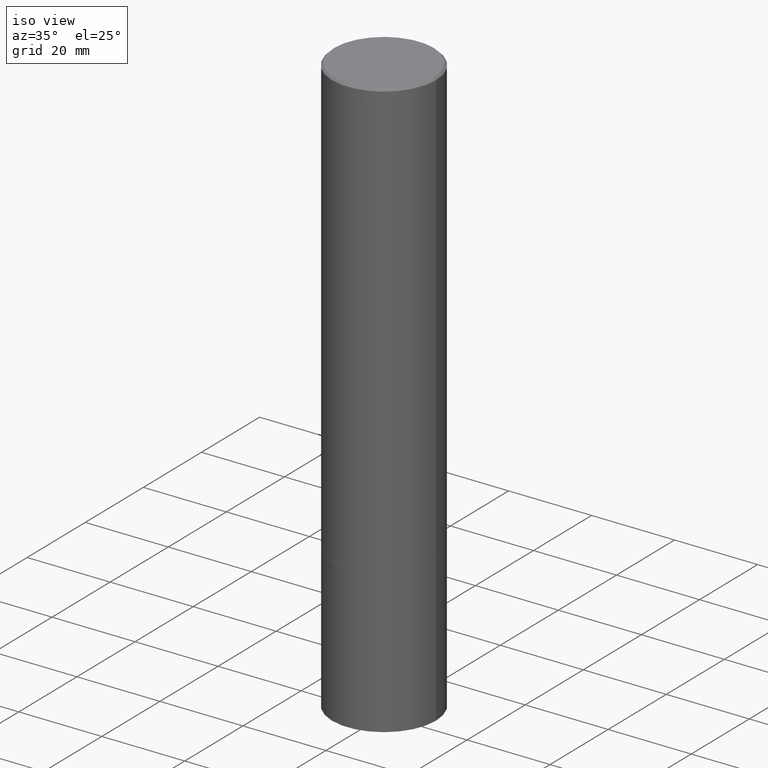
[diagram: clean part render]
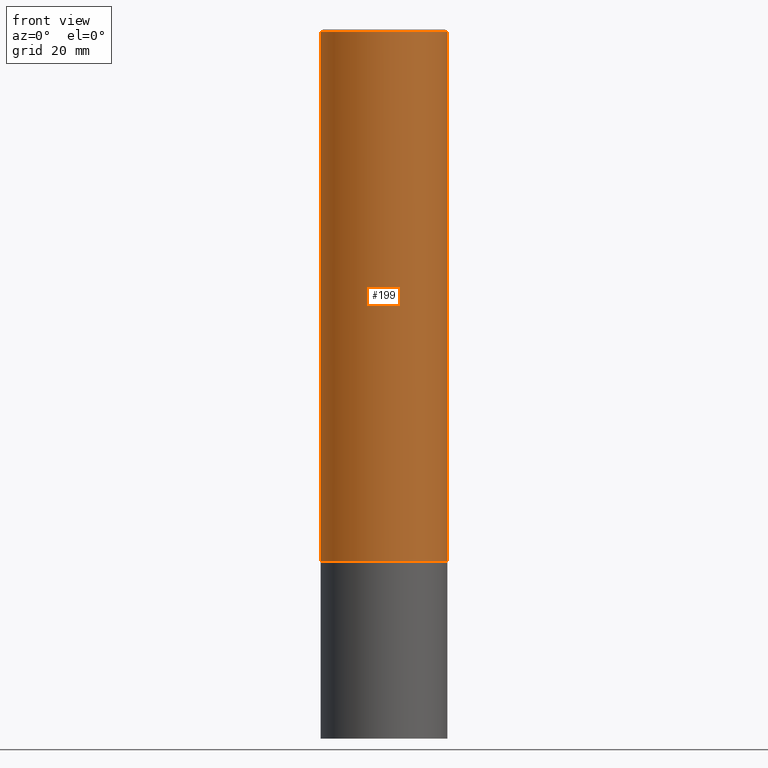
[diagram: tour spotlight — one face highlighted and labeled with its STEP entity id]
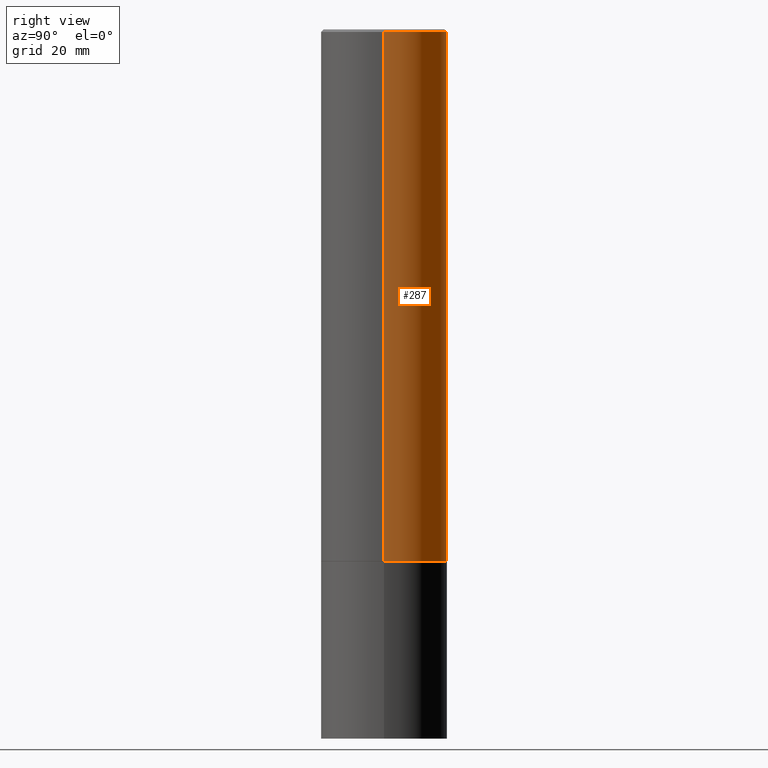
[diagram: tour spotlight — one face highlighted and labeled with its STEP entity id]
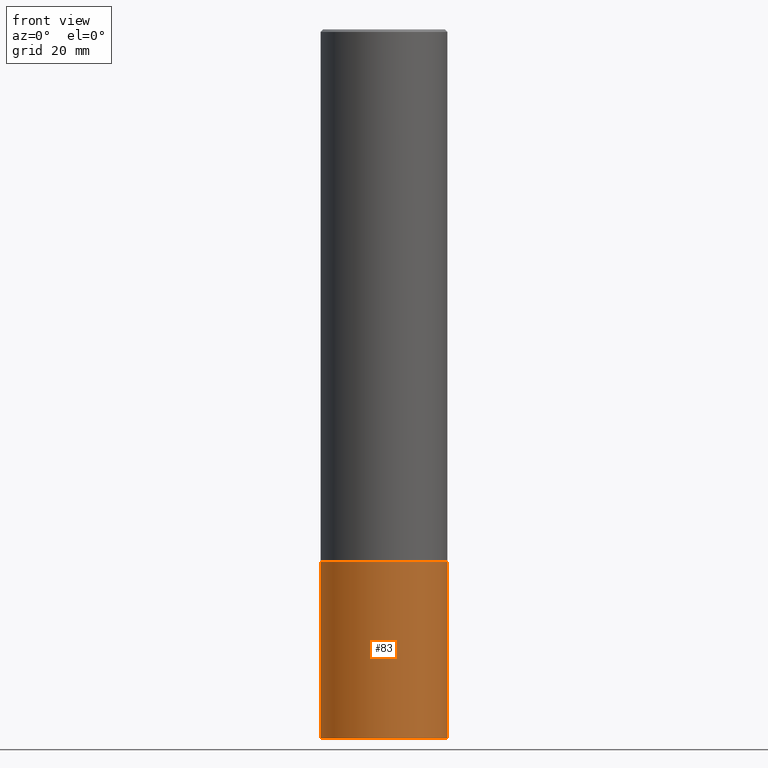
[diagram: tour spotlight — one face highlighted and labeled with its STEP entity id]
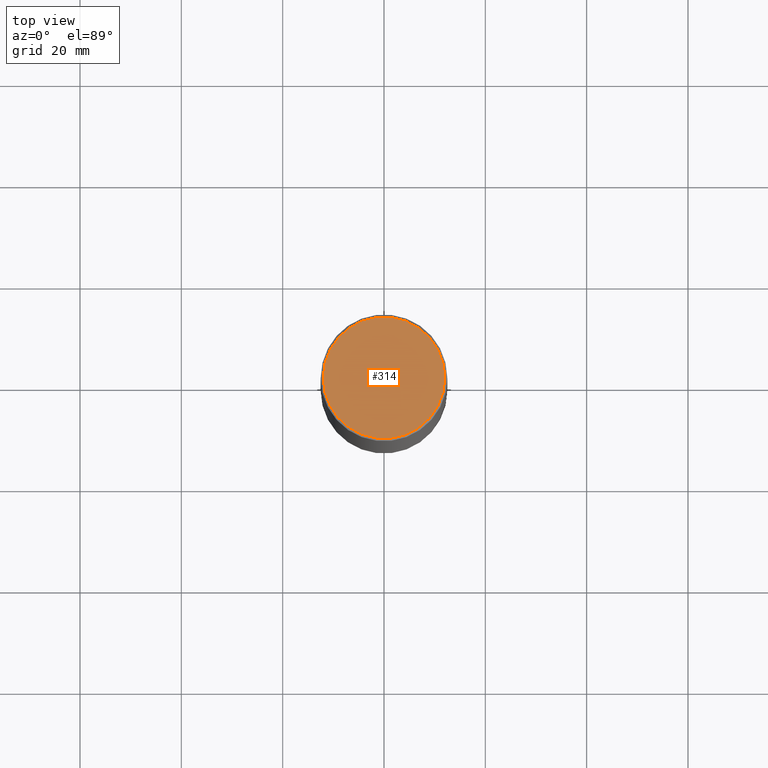
[diagram: tour spotlight — one face highlighted and labeled with its STEP entity id]
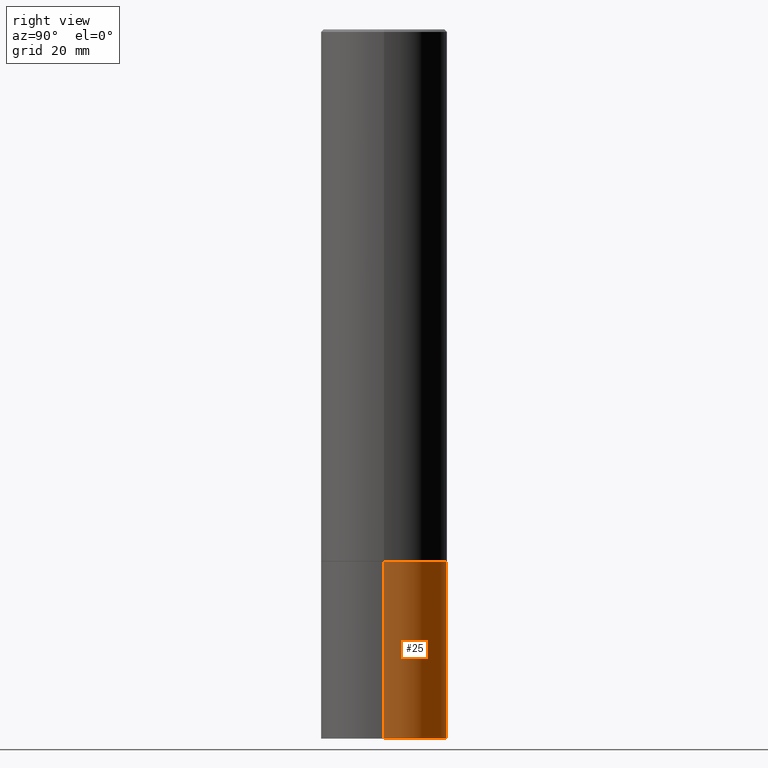
[diagram: tour spotlight — one face highlighted and labeled with its STEP entity id]
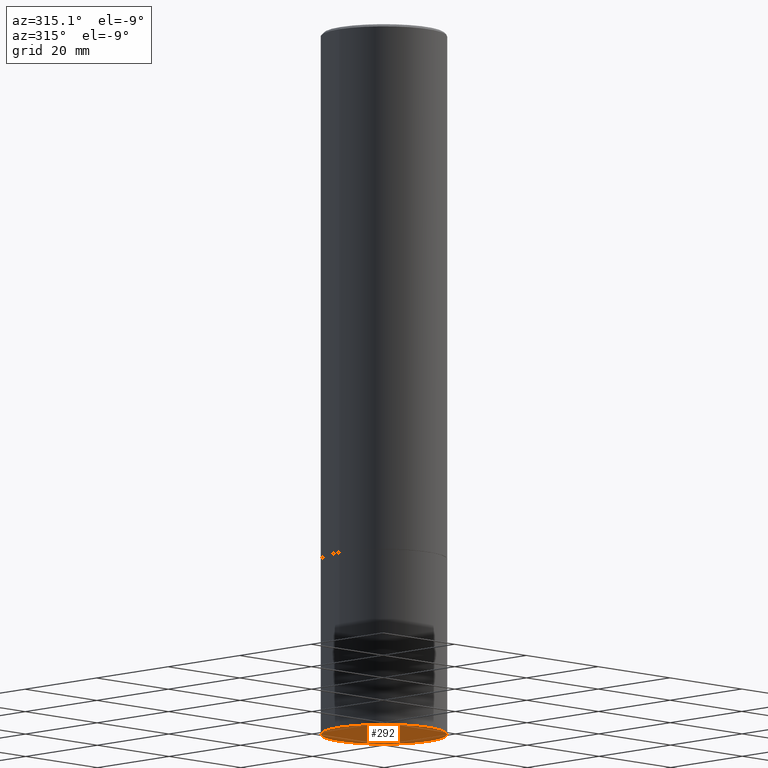
[diagram: tour spotlight — one face highlighted and labeled with its STEP entity id]
A machine part: a face-by-face anatomy tour. The part has 12 B-rep faces; the first image is the clean iso view, then the 6 largest visible faces are spotlighted one at a time (largest first), each with its STEP entity span.

Face 1 — front view, entity #199. In plain terms, the highlighted cylindrical surface (partial cylindrical patch) has radius 12.5006 mm, axis along (-0, 0, 1).
Definition (entity closure, byte-faithful):
#14 = DIRECTION ( 'NONE',  ( -2.445468806185136597E-29, 3.491481338843145583E-15, 1.000000000000000000 ) ) ;
#17 = ORIENTED_EDGE ( 'NONE', *, *, #92, .F. ) ;
#21 = LINE ( 'NONE', #277, #245 ) ;
#39 = VERTEX_POINT ( 'NONE', #222 ) ;
#47 = LINE ( 'NONE', #361, #58 ) ;
#58 = VECTOR ( 'NONE', #93, 39.37007874015748143 ) ;
#60 = VERTEX_POINT ( 'NONE', #171 ) ;
#74 = EDGE_CURVE ( 'NONE', #286, #60, #77, .T. ) ;
#77 = CIRCLE ( 'NONE', #200, 0.4921499999999996988 ) ;
#79 = DIRECTION ( 'NONE',  ( 1.000000000000000000, -6.982962677686265922E-15, 4.876176775795935793E-29 ) ) ;
#89 = ORIENTED_EDGE ( 'NONE', *, *, #281, .T. ) ;
#92 = EDGE_CURVE ( 'NONE', #39, #286, #21, .T. ) ;
#93 = DIRECTION ( 'NONE',  ( -2.445468806185136877E-29, 3.491481338843145188E-15, 1.000000000000000000 ) ) ;
#122 = FACE_OUTER_BOUND ( 'NONE', #185, .T. ) ;
#128 = DIRECTION ( 'NONE',  ( -2.445468806185136597E-29, 3.491481338843145583E-15, 1.000000000000000000 ) ) ;
#149 = DIRECTION ( 'NONE',  ( 1.000000000000000000, -6.982962677686265922E-15, 0.000000000000000000 ) ) ;
#152 = CARTESIAN_POINT ( 'NONE',  ( 0.000000000000000000, 0.000000000000000000, 0.000000000000000000 ) ) ;
#160 = VERTEX_POINT ( 'NONE', #303 ) ;
#171 = CARTESIAN_POINT ( 'NONE',  ( 0.4921499999999996988, -3.446223716380120377E-15, -0.02000000000000011838 ) ) ;
#175 = CIRCLE ( 'NONE', #295, 0.4921499999999999764 ) ;
#184 = CARTESIAN_POINT ( 'NONE',  ( 4.890937612370302936E-31, -6.982962677686332285E-17, -0.02000000000000011838 ) ) ;
#185 = EDGE_LOOP ( 'NONE', ( #17, #366, #89, #280 ) ) ;
#199 = ADVANCED_FACE ( 'NONE', ( #122 ), #339, .T. ) ;
#200 = AXIS2_PLACEMENT_3D ( 'NONE', #184, #14, #326 ) ;
#212 = CARTESIAN_POINT ( 'NONE',  ( -0.4921499999999996988, 3.366835455046430506E-15, -0.02000000000000011838 ) ) ;
#222 = CARTESIAN_POINT ( 'NONE',  ( -0.4921499999999999764, -3.752775777930573480E-15, -4.132800000000000473 ) ) ;
#245 = VECTOR ( 'NONE', #362, 39.37007874015748143 ) ;
#271 = EDGE_CURVE ( 'NONE', #39, #160, #175, .T. ) ;
#273 = DIRECTION ( 'NONE',  ( -2.445468806185136597E-29, 3.491481338843145583E-15, 1.000000000000000000 ) ) ;
#277 = CARTESIAN_POINT ( 'NONE',  ( -0.4921499999999998098, 3.496936074043331714E-15, -2.420853904668950949E-29 ) ) ;
#280 = ORIENTED_EDGE ( 'NONE', *, *, #74, .F. ) ;
#281 = EDGE_CURVE ( 'NONE', #160, #60, #47, .T. ) ;
#286 = VERTEX_POINT ( 'NONE', #212 ) ;
#295 = AXIS2_PLACEMENT_3D ( 'NONE', #304, #128, #149 ) ;
#303 = CARTESIAN_POINT ( 'NONE',  ( 0.4921499999999999764, -1.786625915899424839E-14, -4.132800000000000473 ) ) ;
#304 = CARTESIAN_POINT ( 'NONE',  ( 1.010663348220193347E-28, -1.442959407717095419E-14, -4.132800000000000473 ) ) ;
#326 = DIRECTION ( 'NONE',  ( 1.000000000000000000, -6.982962677686265922E-15, 0.000000000000000000 ) ) ;
#339 = CYLINDRICAL_SURFACE ( 'NONE', #355, 0.4921499999999998098 ) ;
#355 = AXIS2_PLACEMENT_3D ( 'NONE', #152, #273, #79 ) ;
#361 = CARTESIAN_POINT ( 'NONE',  ( 0.4921499999999998098, -3.436665081823294593E-15, 2.399810400207968762E-29 ) ) ;
#362 = DIRECTION ( 'NONE',  ( -2.445468806185136877E-29, 3.491481338843145188E-15, 1.000000000000000000 ) ) ;
#366 = ORIENTED_EDGE ( 'NONE', *, *, #271, .T. ) ;

Face 2 — right view, entity #287. In plain terms, the highlighted cylindrical surface (partial cylindrical patch) has radius 12.5006 mm, axis along (-0, 0, 1).
Definition (entity closure, byte-faithful):
#8 = AXIS2_PLACEMENT_3D ( 'NONE', #121, #335, #299 ) ;
#21 = LINE ( 'NONE', #277, #245 ) ;
#28 = ORIENTED_EDGE ( 'NONE', *, *, #92, .T. ) ;
#32 = CIRCLE ( 'NONE', #8, 0.4921499999999999764 ) ;
#34 = CIRCLE ( 'NONE', #289, 0.4921499999999996988 ) ;
#39 = VERTEX_POINT ( 'NONE', #222 ) ;
#45 = FACE_OUTER_BOUND ( 'NONE', #172, .T. ) ;
#47 = LINE ( 'NONE', #361, #58 ) ;
#53 = ORIENTED_EDGE ( 'NONE', *, *, #281, .F. ) ;
#58 = VECTOR ( 'NONE', #93, 39.37007874015748143 ) ;
#60 = VERTEX_POINT ( 'NONE', #171 ) ;
#78 = ORIENTED_EDGE ( 'NONE', *, *, #247, .T. ) ;
#92 = EDGE_CURVE ( 'NONE', #39, #286, #21, .T. ) ;
#93 = DIRECTION ( 'NONE',  ( -2.445468806185136877E-29, 3.491481338843145188E-15, 1.000000000000000000 ) ) ;
#96 = CYLINDRICAL_SURFACE ( 'NONE', #223, 0.4921499999999998098 ) ;
#104 = CARTESIAN_POINT ( 'NONE',  ( 4.890937612370302936E-31, -6.982962677686332285E-17, -0.02000000000000011838 ) ) ;
#121 = CARTESIAN_POINT ( 'NONE',  ( 1.010663348220193347E-28, -1.442959407717095419E-14, -4.132800000000000473 ) ) ;
#144 = ORIENTED_EDGE ( 'NONE', *, *, #342, .F. ) ;
#155 = DIRECTION ( 'NONE',  ( 1.000000000000000000, -6.982962677686265922E-15, 4.876176775795935793E-29 ) ) ;
#160 = VERTEX_POINT ( 'NONE', #303 ) ;
#171 = CARTESIAN_POINT ( 'NONE',  ( 0.4921499999999996988, -3.446223716380120377E-15, -0.02000000000000011838 ) ) ;
#172 = EDGE_LOOP ( 'NONE', ( #78, #28, #144, #53 ) ) ;
#192 = DIRECTION ( 'NONE',  ( -2.445468806185136597E-29, 3.491481338843145583E-15, 1.000000000000000000 ) ) ;
#212 = CARTESIAN_POINT ( 'NONE',  ( -0.4921499999999996988, 3.366835455046430506E-15, -0.02000000000000011838 ) ) ;
#213 = DIRECTION ( 'NONE',  ( -2.445468806185136597E-29, 3.491481338843145583E-15, 1.000000000000000000 ) ) ;
#222 = CARTESIAN_POINT ( 'NONE',  ( -0.4921499999999999764, -3.752775777930573480E-15, -4.132800000000000473 ) ) ;
#223 = AXIS2_PLACEMENT_3D ( 'NONE', #252, #213, #155 ) ;
#245 = VECTOR ( 'NONE', #362, 39.37007874015748143 ) ;
#247 = EDGE_CURVE ( 'NONE', #160, #39, #32, .T. ) ;
#252 = CARTESIAN_POINT ( 'NONE',  ( 0.000000000000000000, 0.000000000000000000, 0.000000000000000000 ) ) ;
#277 = CARTESIAN_POINT ( 'NONE',  ( -0.4921499999999998098, 3.496936074043331714E-15, -2.420853904668950949E-29 ) ) ;
#281 = EDGE_CURVE ( 'NONE', #160, #60, #47, .T. ) ;
#286 = VERTEX_POINT ( 'NONE', #212 ) ;
#287 = ADVANCED_FACE ( 'NONE', ( #45 ), #96, .T. ) ;
#289 = AXIS2_PLACEMENT_3D ( 'NONE', #104, #192, #310 ) ;
#299 = DIRECTION ( 'NONE',  ( 1.000000000000000000, -6.982962677686265922E-15, 0.000000000000000000 ) ) ;
#303 = CARTESIAN_POINT ( 'NONE',  ( 0.4921499999999999764, -1.786625915899424839E-14, -4.132800000000000473 ) ) ;
#310 = DIRECTION ( 'NONE',  ( 1.000000000000000000, -6.982962677686265922E-15, 0.000000000000000000 ) ) ;
#335 = DIRECTION ( 'NONE',  ( -2.445468806185136597E-29, 3.491481338843145583E-15, 1.000000000000000000 ) ) ;
#342 = EDGE_CURVE ( 'NONE', #60, #286, #34, .T. ) ;
#361 = CARTESIAN_POINT ( 'NONE',  ( 0.4921499999999998098, -3.436665081823294593E-15, 2.399810400207968762E-29 ) ) ;
#362 = DIRECTION ( 'NONE',  ( -2.445468806185136877E-29, 3.491481338843145188E-15, 1.000000000000000000 ) ) ;

Face 3 — front view, entity #83. In plain terms, the highlighted cylindrical surface (partial cylindrical patch) has radius 12.5006 mm, axis along (-0, 0, 1).
Definition (entity closure, byte-faithful):
#6 = CARTESIAN_POINT ( 'NONE',  ( 1.010907895100811684E-28, -1.443308555850979562E-14, -4.133799999999999919 ) ) ;
#18 = EDGE_CURVE ( 'NONE', #265, #61, #288, .T. ) ;
#29 = CARTESIAN_POINT ( 'NONE',  ( 0.4921499999999999764, -1.786975064033308982E-14, -4.133799999999999919 ) ) ;
#30 = DIRECTION ( 'NONE',  ( -2.445468806185136877E-29, 3.491481338843145188E-15, 1.000000000000000000 ) ) ;
#36 = ORIENTED_EDGE ( 'NONE', *, *, #353, .F. ) ;
#46 = ORIENTED_EDGE ( 'NONE', *, *, #18, .F. ) ;
#55 = DIRECTION ( 'NONE',  ( -2.445468806185136597E-29, 3.491481338843145583E-15, 1.000000000000000000 ) ) ;
#61 = VERTEX_POINT ( 'NONE', #296 ) ;
#62 = CARTESIAN_POINT ( 'NONE',  ( 0.000000000000000000, 0.000000000000000000, 0.000000000000000000 ) ) ;
#64 = EDGE_LOOP ( 'NONE', ( #46, #358, #138, #36 ) ) ;
#69 = AXIS2_PLACEMENT_3D ( 'NONE', #6, #71, #359 ) ;
#71 = DIRECTION ( 'NONE',  ( -2.445468806185136597E-29, 3.491481338843145583E-15, 1.000000000000000000 ) ) ;
#83 = ADVANCED_FACE ( 'NONE', ( #115 ), #118, .T. ) ;
#87 = VECTOR ( 'NONE', #30, 39.37007874015748143 ) ;
#94 = CARTESIAN_POINT ( 'NONE',  ( -0.4921499999999999764, -1.334178012692939009E-14, -5.511800000000000033 ) ) ;
#115 = FACE_OUTER_BOUND ( 'NONE', #64, .T. ) ;
#118 = CYLINDRICAL_SURFACE ( 'NONE', #262, 0.4921499999999999764 ) ;
#130 = VERTEX_POINT ( 'NONE', #29 ) ;
#136 = DIRECTION ( 'NONE',  ( 1.000000000000000000, -6.982962677686265922E-15, 0.000000000000000000 ) ) ;
#138 = ORIENTED_EDGE ( 'NONE', *, *, #308, .T. ) ;
#146 = DIRECTION ( 'NONE',  ( -2.445468806185136597E-29, 3.491481338843145583E-15, 1.000000000000000000 ) ) ;
#153 = CIRCLE ( 'NONE', #69, 0.4921499999999999764 ) ;
#189 = VERTEX_POINT ( 'NONE', #244 ) ;
#209 = CARTESIAN_POINT ( 'NONE',  ( 0.4921499999999999764, -3.436665081823295777E-15, 2.399810400207969603E-29 ) ) ;
#229 = VECTOR ( 'NONE', #243, 39.37007874015748143 ) ;
#243 = DIRECTION ( 'NONE',  ( -2.445468806185136877E-29, 3.491481338843145188E-15, 1.000000000000000000 ) ) ;
#244 = CARTESIAN_POINT ( 'NONE',  ( 0.4921499999999999764, -2.268101192525894613E-14, -5.511800000000000033 ) ) ;
#262 = AXIS2_PLACEMENT_3D ( 'NONE', #62, #146, #263 ) ;
#263 = DIRECTION ( 'NONE',  ( 1.000000000000000000, -6.982962677686265922E-15, 4.876176775795935793E-29 ) ) ;
#265 = VERTEX_POINT ( 'NONE', #94 ) ;
#274 = CIRCLE ( 'NONE', #322, 0.4921499999999999764 ) ;
#288 = LINE ( 'NONE', #349, #87 ) ;
#296 = CARTESIAN_POINT ( 'NONE',  ( -0.4921499999999999764, -1.334178012692939009E-14, -4.133799999999999919 ) ) ;
#308 = EDGE_CURVE ( 'NONE', #189, #130, #356, .T. ) ;
#320 = CARTESIAN_POINT ( 'NONE',  ( 1.347893496593123646E-28, -1.924434684343564878E-14, -5.511800000000000033 ) ) ;
#322 = AXIS2_PLACEMENT_3D ( 'NONE', #320, #55, #136 ) ;
#323 = EDGE_CURVE ( 'NONE', #265, #189, #274, .T. ) ;
#349 = CARTESIAN_POINT ( 'NONE',  ( -0.4921499999999999764, 3.496936074043332897E-15, -2.420853904668951509E-29 ) ) ;
#353 = EDGE_CURVE ( 'NONE', #61, #130, #153, .T. ) ;
#356 = LINE ( 'NONE', #209, #229 ) ;
#358 = ORIENTED_EDGE ( 'NONE', *, *, #323, .T. ) ;
#359 = DIRECTION ( 'NONE',  ( 1.000000000000000000, -6.982962677686261977E-15, 0.000000000000000000 ) ) ;

Face 4 — top view, entity #314. In plain terms, the highlighted planar face has unit normal (0, -0, -1).
Definition (entity closure, byte-faithful):
#15 = AXIS2_PLACEMENT_3D ( 'NONE', #325, #224, #270 ) ;
#23 = CIRCLE ( 'NONE', #291, 0.4721499999999996255 ) ;
#41 = CARTESIAN_POINT ( 'NONE',  ( -0.4721499999999996255, 3.331920641657999252E-15, 8.537024980177643606E-18 ) ) ;
#63 = AXIS2_PLACEMENT_3D ( 'NONE', #197, #344, #279 ) ;
#101 = FACE_OUTER_BOUND ( 'NONE', #293, .T. ) ;
#103 = CARTESIAN_POINT ( 'NONE',  ( 0.4721499999999996255, -3.342703923013973396E-15, 8.537024980224040028E-18 ) ) ;
#108 = EDGE_CURVE ( 'NONE', #214, #186, #23, .T. ) ;
#112 = CARTESIAN_POINT ( 'NONE',  ( -2.087702828670439639E-46, 2.980686340760894400E-32, 8.537024980200822558E-18 ) ) ;
#135 = EDGE_CURVE ( 'NONE', #186, #214, #169, .T. ) ;
#169 = CIRCLE ( 'NONE', #15, 0.4721499999999996255 ) ;
#186 = VERTEX_POINT ( 'NONE', #103 ) ;
#196 = PLANE ( 'NONE',  #63 ) ;
#197 = CARTESIAN_POINT ( 'NONE',  ( 3.297005828269567997E-15, 0.4721499999999996255, -1.644234401644689488E-15 ) ) ;
#214 = VERTEX_POINT ( 'NONE', #41 ) ;
#224 = DIRECTION ( 'NONE',  ( -2.445468806185136597E-29, 3.491481338843145583E-15, 1.000000000000000000 ) ) ;
#230 = ORIENTED_EDGE ( 'NONE', *, *, #108, .T. ) ;
#234 = ORIENTED_EDGE ( 'NONE', *, *, #135, .T. ) ;
#270 = DIRECTION ( 'NONE',  ( 1.000000000000000000, -6.982962677686265922E-15, 4.876006802227162976E-29 ) ) ;
#275 = DIRECTION ( 'NONE',  ( -2.445468806185136597E-29, 3.491481338843145583E-15, 1.000000000000000000 ) ) ;
#279 = DIRECTION ( 'NONE',  ( -1.000000000000000000, 6.982962677686265922E-15, -4.876176775795935793E-29 ) ) ;
#285 = DIRECTION ( 'NONE',  ( 1.000000000000000000, -6.982962677686265922E-15, 4.876006802227162976E-29 ) ) ;
#291 = AXIS2_PLACEMENT_3D ( 'NONE', #112, #275, #285 ) ;
#293 = EDGE_LOOP ( 'NONE', ( #230, #234 ) ) ;
#314 = ADVANCED_FACE ( 'NONE', ( #101 ), #196, .F. ) ;
#325 = CARTESIAN_POINT ( 'NONE',  ( -2.087702828670439639E-46, 2.980686340760894400E-32, 8.537024980200822558E-18 ) ) ;
#344 = DIRECTION ( 'NONE',  ( 2.438088387897960049E-29, -3.491481338843145188E-15, -1.000000000000000000 ) ) ;

Face 5 — right view, entity #25. In plain terms, the highlighted cylindrical surface (partial cylindrical patch) has radius 12.5006 mm, axis along (-0, 0, 1).
Definition (entity closure, byte-faithful):
#7 = AXIS2_PLACEMENT_3D ( 'NONE', #140, #198, #321 ) ;
#18 = EDGE_CURVE ( 'NONE', #265, #61, #288, .T. ) ;
#24 = CIRCLE ( 'NONE', #217, 0.4921499999999999764 ) ;
#25 = ADVANCED_FACE ( 'NONE', ( #107 ), #59, .T. ) ;
#29 = CARTESIAN_POINT ( 'NONE',  ( 0.4921499999999999764, -1.786975064033308982E-14, -4.133799999999999919 ) ) ;
#30 = DIRECTION ( 'NONE',  ( -2.445468806185136877E-29, 3.491481338843145188E-15, 1.000000000000000000 ) ) ;
#59 = CYLINDRICAL_SURFACE ( 'NONE', #7, 0.4921499999999999764 ) ;
#61 = VERTEX_POINT ( 'NONE', #296 ) ;
#87 = VECTOR ( 'NONE', #30, 39.37007874015748143 ) ;
#94 = CARTESIAN_POINT ( 'NONE',  ( -0.4921499999999999764, -1.334178012692939009E-14, -5.511800000000000033 ) ) ;
#107 = FACE_OUTER_BOUND ( 'NONE', #330, .T. ) ;
#116 = EDGE_CURVE ( 'NONE', #130, #61, #312, .T. ) ;
#130 = VERTEX_POINT ( 'NONE', #29 ) ;
#140 = CARTESIAN_POINT ( 'NONE',  ( 0.000000000000000000, 0.000000000000000000, 0.000000000000000000 ) ) ;
#143 = AXIS2_PLACEMENT_3D ( 'NONE', #260, #297, #337 ) ;
#150 = CARTESIAN_POINT ( 'NONE',  ( 1.347893496593123646E-28, -1.924434684343564878E-14, -5.511800000000000033 ) ) ;
#189 = VERTEX_POINT ( 'NONE', #244 ) ;
#198 = DIRECTION ( 'NONE',  ( -2.445468806185136597E-29, 3.491481338843145583E-15, 1.000000000000000000 ) ) ;
#208 = ORIENTED_EDGE ( 'NONE', *, *, #308, .F. ) ;
#209 = CARTESIAN_POINT ( 'NONE',  ( 0.4921499999999999764, -3.436665081823295777E-15, 2.399810400207969603E-29 ) ) ;
#215 = DIRECTION ( 'NONE',  ( -2.445468806185136597E-29, 3.491481338843145583E-15, 1.000000000000000000 ) ) ;
#217 = AXIS2_PLACEMENT_3D ( 'NONE', #150, #215, #267 ) ;
#219 = EDGE_CURVE ( 'NONE', #189, #265, #24, .T. ) ;
#229 = VECTOR ( 'NONE', #243, 39.37007874015748143 ) ;
#241 = ORIENTED_EDGE ( 'NONE', *, *, #18, .T. ) ;
#243 = DIRECTION ( 'NONE',  ( -2.445468806185136877E-29, 3.491481338843145188E-15, 1.000000000000000000 ) ) ;
#244 = CARTESIAN_POINT ( 'NONE',  ( 0.4921499999999999764, -2.268101192525894613E-14, -5.511800000000000033 ) ) ;
#260 = CARTESIAN_POINT ( 'NONE',  ( 1.010907895100811684E-28, -1.443308555850979562E-14, -4.133799999999999919 ) ) ;
#265 = VERTEX_POINT ( 'NONE', #94 ) ;
#267 = DIRECTION ( 'NONE',  ( 1.000000000000000000, -6.982962677686265922E-15, 0.000000000000000000 ) ) ;
#288 = LINE ( 'NONE', #349, #87 ) ;
#296 = CARTESIAN_POINT ( 'NONE',  ( -0.4921499999999999764, -1.334178012692939009E-14, -4.133799999999999919 ) ) ;
#297 = DIRECTION ( 'NONE',  ( -2.445468806185136597E-29, 3.491481338843145583E-15, 1.000000000000000000 ) ) ;
#307 = ORIENTED_EDGE ( 'NONE', *, *, #219, .T. ) ;
#308 = EDGE_CURVE ( 'NONE', #189, #130, #356, .T. ) ;
#312 = CIRCLE ( 'NONE', #143, 0.4921499999999999764 ) ;
#319 = ORIENTED_EDGE ( 'NONE', *, *, #116, .F. ) ;
#321 = DIRECTION ( 'NONE',  ( 1.000000000000000000, -6.982962677686265922E-15, 4.876176775795935793E-29 ) ) ;
#330 = EDGE_LOOP ( 'NONE', ( #307, #241, #319, #208 ) ) ;
#337 = DIRECTION ( 'NONE',  ( 1.000000000000000000, -6.982962677686261977E-15, 0.000000000000000000 ) ) ;
#349 = CARTESIAN_POINT ( 'NONE',  ( -0.4921499999999999764, 3.496936074043332897E-15, -2.420853904668951509E-29 ) ) ;
#356 = LINE ( 'NONE', #209, #229 ) ;

Face 6 — auxiliary view, entity #292. In plain terms, the highlighted planar face has unit normal (0, -0, -1).
Definition (entity closure, byte-faithful):
#24 = CIRCLE ( 'NONE', #217, 0.4921499999999999764 ) ;
#55 = DIRECTION ( 'NONE',  ( -2.445468806185136597E-29, 3.491481338843145583E-15, 1.000000000000000000 ) ) ;
#70 = DIRECTION ( 'NONE',  ( -1.000000000000000000, 6.982962677686265922E-15, -4.876176775795935793E-29 ) ) ;
#94 = CARTESIAN_POINT ( 'NONE',  ( -0.4921499999999999764, -1.334178012692939009E-14, -5.511800000000000033 ) ) ;
#97 = PLANE ( 'NONE',  #193 ) ;
#129 = DIRECTION ( 'NONE',  ( 2.438088387897960049E-29, -3.491481338843145188E-15, -1.000000000000000000 ) ) ;
#136 = DIRECTION ( 'NONE',  ( 1.000000000000000000, -6.982962677686265922E-15, 0.000000000000000000 ) ) ;
#150 = CARTESIAN_POINT ( 'NONE',  ( 1.347893496593123646E-28, -1.924434684343564878E-14, -5.511800000000000033 ) ) ;
#157 = CARTESIAN_POINT ( 'NONE',  ( 3.436665081823430672E-15, 0.4921499999999807140, -5.511800000000001809 ) ) ;
#177 = ORIENTED_EDGE ( 'NONE', *, *, #323, .F. ) ;
#189 = VERTEX_POINT ( 'NONE', #244 ) ;
#193 = AXIS2_PLACEMENT_3D ( 'NONE', #157, #129, #70 ) ;
#215 = DIRECTION ( 'NONE',  ( -2.445468806185136597E-29, 3.491481338843145583E-15, 1.000000000000000000 ) ) ;
#217 = AXIS2_PLACEMENT_3D ( 'NONE', #150, #215, #267 ) ;
#219 = EDGE_CURVE ( 'NONE', #189, #265, #24, .T. ) ;
#244 = CARTESIAN_POINT ( 'NONE',  ( 0.4921499999999999764, -2.268101192525894613E-14, -5.511800000000000033 ) ) ;
#265 = VERTEX_POINT ( 'NONE', #94 ) ;
#267 = DIRECTION ( 'NONE',  ( 1.000000000000000000, -6.982962677686265922E-15, 0.000000000000000000 ) ) ;
#269 = EDGE_LOOP ( 'NONE', ( #315, #177 ) ) ;
#274 = CIRCLE ( 'NONE', #322, 0.4921499999999999764 ) ;
#292 = ADVANCED_FACE ( 'NONE', ( #363 ), #97, .T. ) ;
#315 = ORIENTED_EDGE ( 'NONE', *, *, #219, .F. ) ;
#320 = CARTESIAN_POINT ( 'NONE',  ( 1.347893496593123646E-28, -1.924434684343564878E-14, -5.511800000000000033 ) ) ;
#322 = AXIS2_PLACEMENT_3D ( 'NONE', #320, #55, #136 ) ;
#323 = EDGE_CURVE ( 'NONE', #265, #189, #274, .T. ) ;
#363 = FACE_OUTER_BOUND ( 'NONE', #269, .T. ) ;